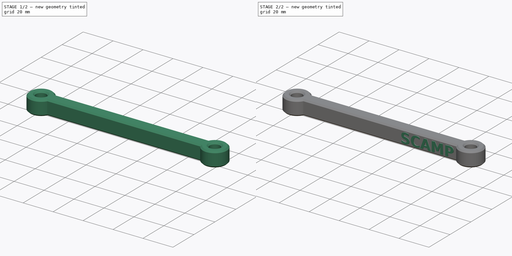
[diagram: build sequence overview — one tinted view per stage of 2, left to right]
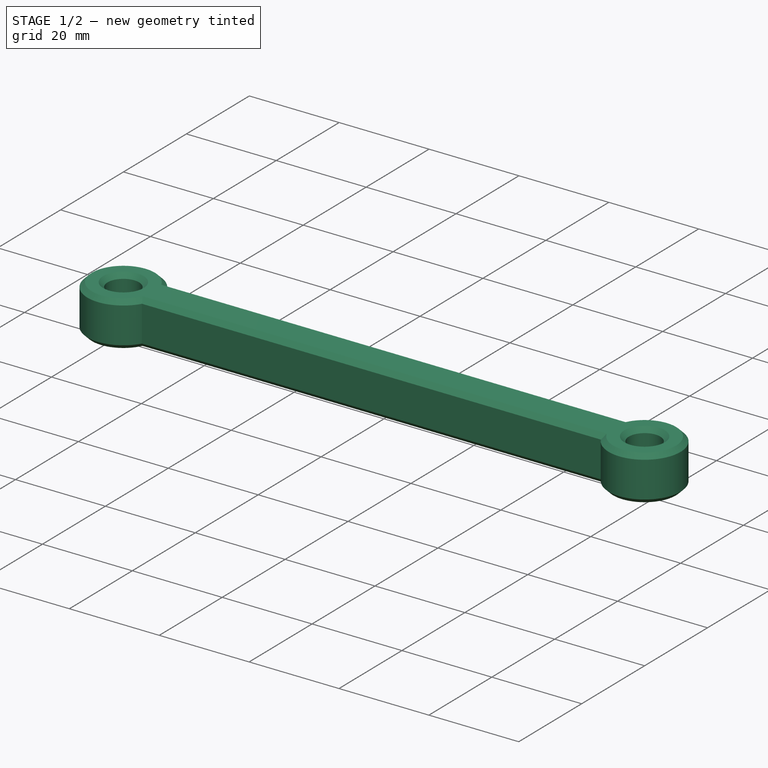
[diagram: stage 1 of 2 — iso view after this stage's code; geometry added in this stage tinted green]
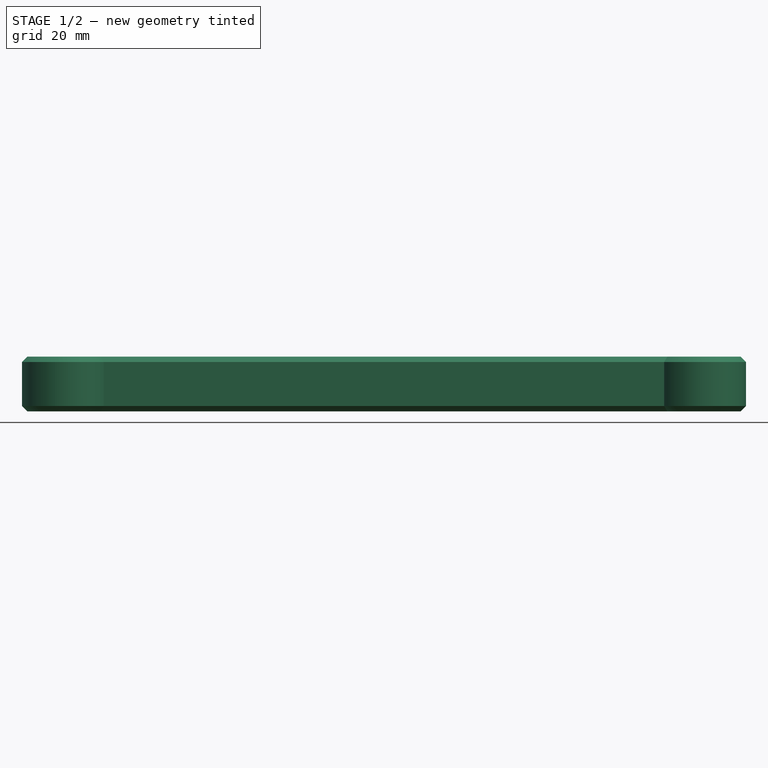
[diagram: stage 1 of 2 — front view after this stage's code; geometry added in this stage tinted green]
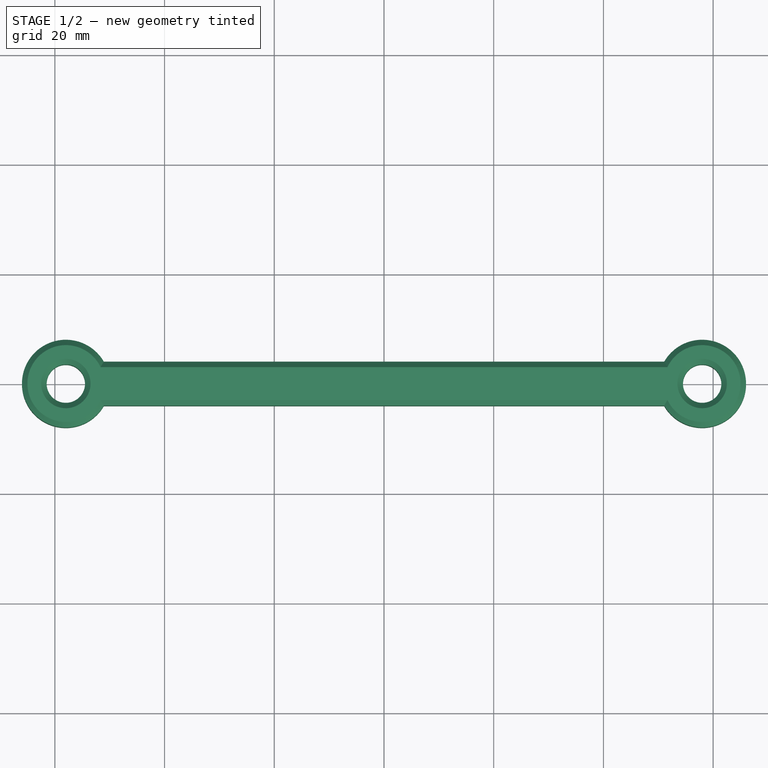
[diagram: stage 1 of 2 — top view after this stage's code; geometry added in this stage tinted green]
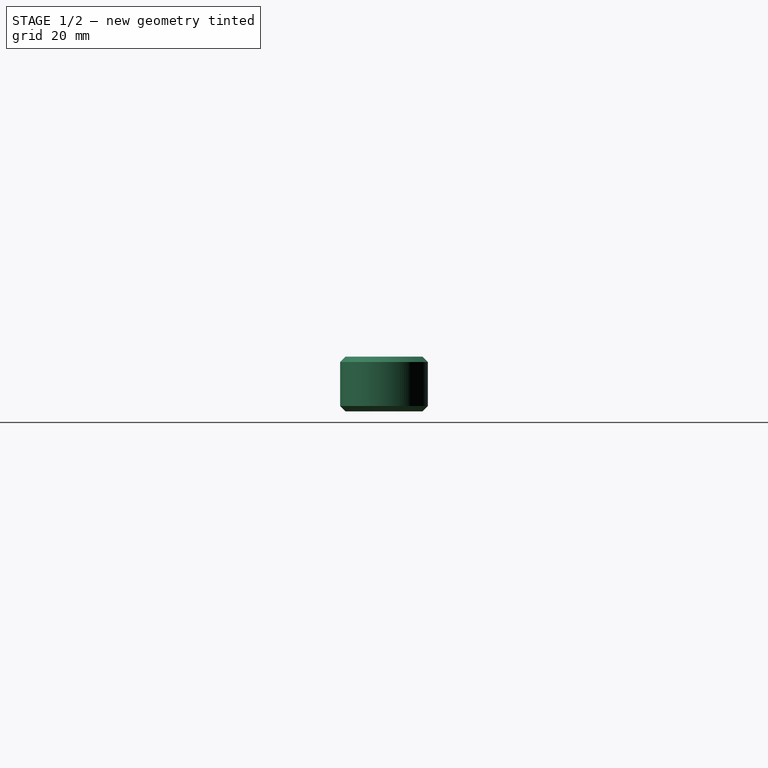
[diagram: stage 1 of 2 — right view after this stage's code; geometry added in this stage tinted green]
FCSTD DOCUMENT  (FreeCAD 0.19R23141 (Git))
Label: horizontal-brace
License: All rights reserved
LicenseURL: http://en.wikipedia.org/wiki/All_rights_reserved
objects: Sketcher::SketchObject×2, PartDesign::Pad×2, PartDesign::Chamfer×1, PartDesign::Body×1
note: 9 computed .brp shape members not serialized (recipe doc carries the construction recipe); baked Part::Feature solids carry a one-line shape summary decoded from their .brp

FEATURE [Sketcher::SketchObject] Sketch
  MapMode = 5
  Support = -> [XY_Plane]
  sketch-geometry (6):
    g0: Circle CenterX=-58 CenterY=-5e-16 CenterZ=0 NormalX=0 NormalY=0 NormalZ=1 AngleXU=0 Radius=3.5
    g1: Circle CenterX=58 CenterY=-5e-16 CenterZ=0 NormalX=0 NormalY=0 NormalZ=1 AngleXU=0 Radius=3.5
    g2: ArcOfCircle CenterX=-58 CenterY=-5e-16 CenterZ=0 NormalX=0 NormalY=0 NormalZ=1 AngleXU=0 Radius=8 StartAngle=0.523599 EndAngle=5.75959
    g3: ArcOfCircle CenterX=58 CenterY=-5e-16 CenterZ=0 NormalX=0 NormalY=0 NormalZ=1 AngleXU=0 Radius=8 StartAngle=3.66519 EndAngle=8.90118
    g4: LineSegment StartX=-51.0718 StartY=4 StartZ=0 EndX=51.0718 EndY=4 EndZ=0
    g5: LineSegment StartX=51.0718 StartY=-4 StartZ=0 EndX=-51.0718 EndY=-4 EndZ=0
  constraints (16):
    c: Equal(g1,g0)
    c: Radius(g0) = 3.5
    c: DistanceX(g0,g1) = 116
    c: Coincident(g2,g0)
    c: Coincident(g3,g1)
    c: Equal(g2,g3)
    c: Radius(g2) = 8
    c: Symmetric(g0,g1,g-2)
    c: Coincident(g4,g2)
    c: Coincident(g4,g3)
    c: Horizontal(g4)
    c: Coincident(g5,g3)
    c: Coincident(g5,g2)
    c: Horizontal(g5)
    c: Symmetric(g2,g2,g-1)
    c: DistanceY(g3,g3) = 8
FEATURE [PartDesign::Pad] Pad
  Direction = (1,1,1)
  Length = 10
  Length2 = 100
  Profile = -> Sketch
  Refine = true
  Type = 0
FEATURE [PartDesign::Chamfer] Chamfer
  Angle = 45
  Base = -> Pad [Edge12,Edge10,Edge4,Edge11,Edge3,Edge9,Edge18,Edge15,Edge7,Edge6,Edge17,Edge14]
  BaseFeature = -> Pad
  ChamferType = 0
  FlipDirection = false
  Refine = true
  Size = 1
  Size2 = 1
  SupportTransform = false
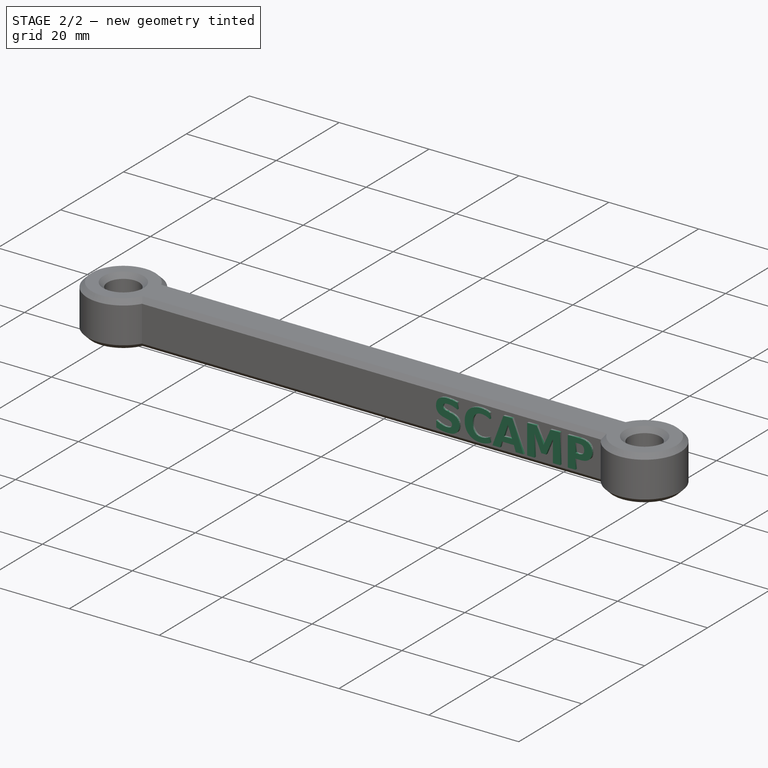
[diagram: stage 2 of 2 — iso view after this stage's code; geometry added in this stage tinted green]
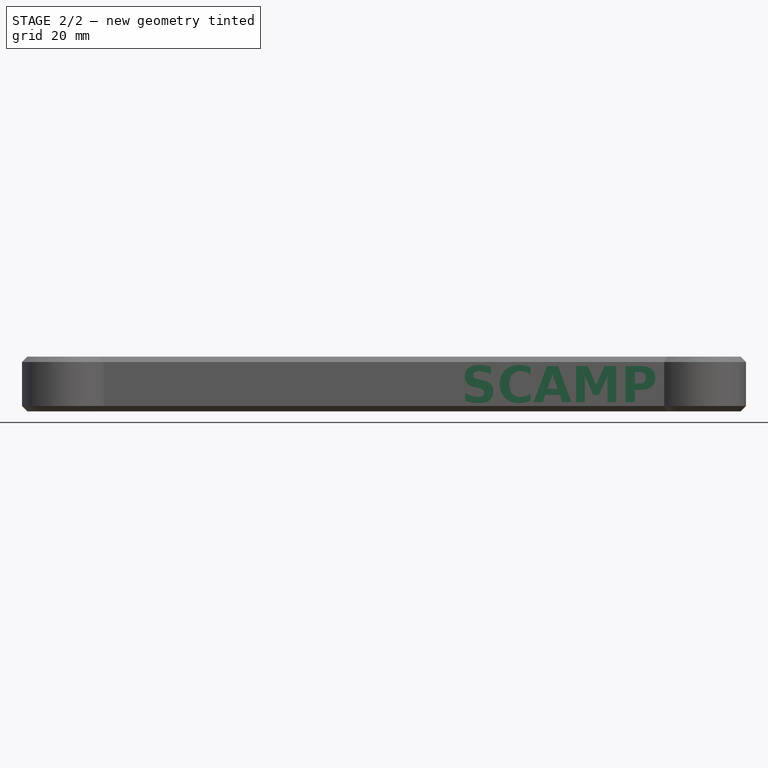
[diagram: stage 2 of 2 — front view after this stage's code; geometry added in this stage tinted green]
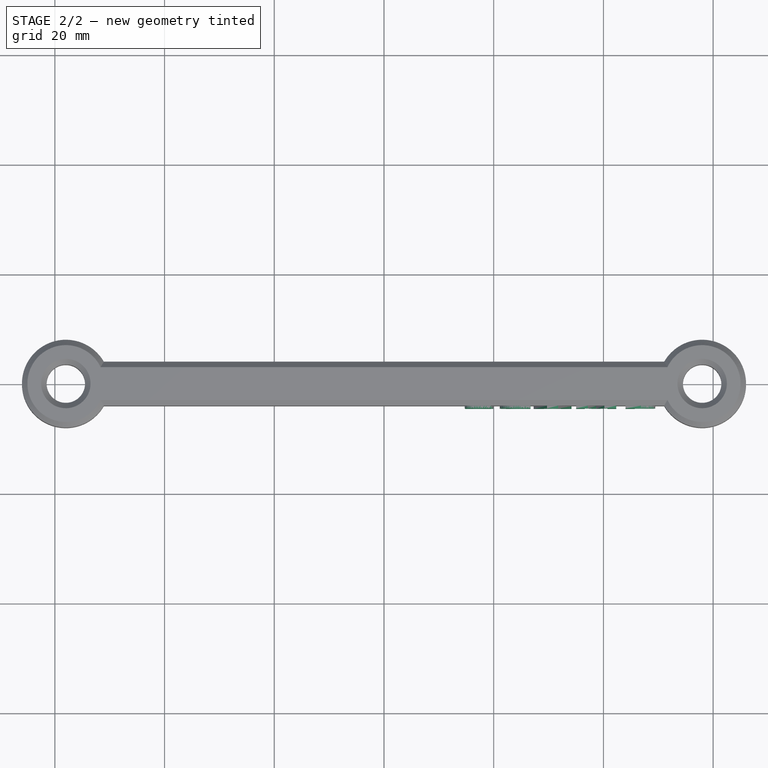
[diagram: stage 2 of 2 — top view after this stage's code; geometry added in this stage tinted green]
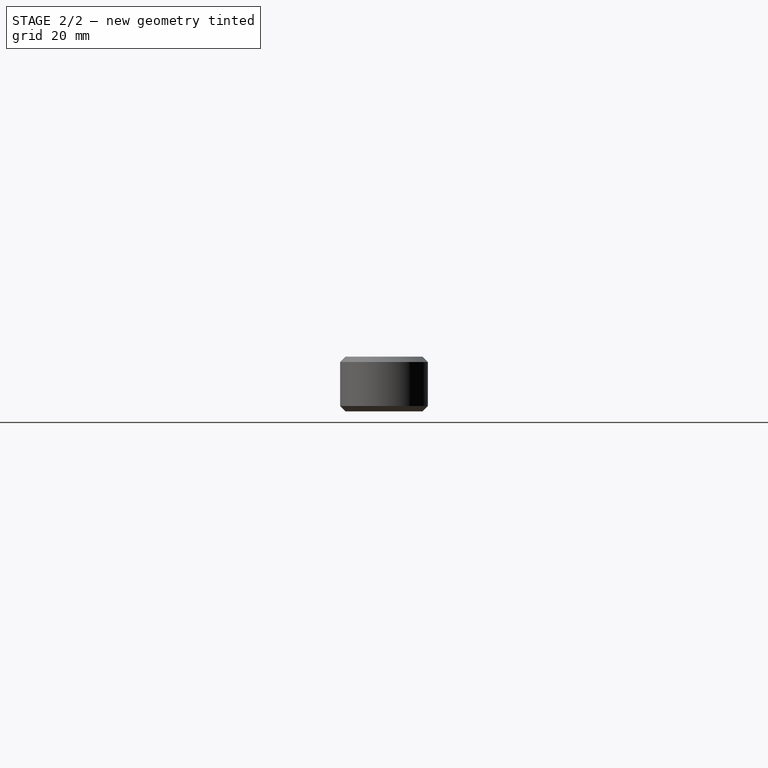
[diagram: stage 2 of 2 — right view after this stage's code; geometry added in this stage tinted green]
FEATURE [Sketcher::SketchObject] Sketch001
  MapMode = 5
  Placement = pos=(0,-4,0) rot=(1,0,0;1.5708rad)
  Support = -> [Chamfer]
  sketch-geometry (86):
    g0: LineSegment StartX=19.4856 StartY=8.1656 StartZ=0 EndX=19.4856 EndY=6.77383 EndZ=0
    g1: BSplineCurve PolesCount=3 KnotsCount=2 Degree=2 IsPeriodic=0
    g2: BSplineCurve PolesCount=3 KnotsCount=2 Degree=2 IsPeriodic=0
    g3: BSplineCurve PolesCount=3 KnotsCount=2 Degree=2 IsPeriodic=0
    g4: BSplineCurve PolesCount=3 KnotsCount=2 Degree=2 IsPeriodic=0
    g5: BSplineCurve PolesCount=3 KnotsCount=2 Degree=2 IsPeriodic=0
    g6: BSplineCurve PolesCount=3 KnotsCount=2 Degree=2 IsPeriodic=0
    g7: LineSegment StartX=17.2834 StartY=4.25159 StartZ=0 EndX=16.6257 EndY=4.40428 EndZ=0
    g8: BSplineCurve PolesCount=3 KnotsCount=2 Degree=2 IsPeriodic=0
    g9: BSplineCurve PolesCount=3 KnotsCount=2 Degree=2 IsPeriodic=0
    g10: BSplineCurve PolesCount=3 KnotsCount=2 Degree=2 IsPeriodic=0
    g11: BSplineCurve PolesCount=3 KnotsCount=2 Degree=2 IsPeriodic=0
    g12: BSplineCurve PolesCount=3 KnotsCount=2 Degree=2 IsPeriodic=0
    g13: BSplineCurve PolesCount=3 KnotsCount=2 Degree=2 IsPeriodic=0
    g14: LineSegment StartX=14.7847 StartY=1.94371 StartZ=0 EndX=14.7847 EndY=3.39128 EndZ=0
    g15: BSplineCurve PolesCount=3 KnotsCount=2 Degree=2 IsPeriodic=0
    g16: BSplineCurve PolesCount=3 KnotsCount=2 Degree=2 IsPeriodic=0
    g17: BSplineCurve PolesCount=3 KnotsCount=2 Degree=2 IsPeriodic=0
    g18: BSplineCurve PolesCount=3 KnotsCount=2 Degree=2 IsPeriodic=0
    g19: BSplineCurve PolesCount=3 KnotsCount=2 Degree=2 IsPeriodic=0
    g20: BSplineCurve PolesCount=3 KnotsCount=2 Degree=2 IsPeriodic=0
    g21: LineSegment StartX=17.1719 StartY=5.86065 StartZ=0 EndX=17.8942 EndY=5.70797 EndZ=0
    g22: BSplineCurve PolesCount=3 KnotsCount=2 Degree=2 IsPeriodic=0
    g23: BSplineCurve PolesCount=3 KnotsCount=2 Degree=2 IsPeriodic=0
    g24: BSplineCurve PolesCount=3 KnotsCount=2 Degree=2 IsPeriodic=0
    g25: BSplineCurve PolesCount=3 KnotsCount=2 Degree=2 IsPeriodic=0
    g26: BSplineCurve PolesCount=3 KnotsCount=2 Degree=2 IsPeriodic=0
    g27: BSplineCurve PolesCount=3 KnotsCount=2 Degree=2 IsPeriodic=0
    g28: BSplineCurve PolesCount=3 KnotsCount=2 Degree=2 IsPeriodic=0
    g29: LineSegment StartX=26.7 StartY=3.20336 StartZ=0 EndX=26.7 EndY=1.96133 EndZ=0
    g30: BSplineCurve PolesCount=3 KnotsCount=2 Degree=2 IsPeriodic=0
    g31: BSplineCurve PolesCount=3 KnotsCount=2 Degree=2 IsPeriodic=0
    g32: BSplineCurve PolesCount=3 KnotsCount=2 Degree=2 IsPeriodic=0
    g33: BSplineCurve PolesCount=3 KnotsCount=2 Degree=2 IsPeriodic=0
    g34: BSplineCurve PolesCount=3 KnotsCount=2 Degree=2 IsPeriodic=0
    g35: BSplineCurve PolesCount=3 KnotsCount=2 Degree=2 IsPeriodic=0
    g36: BSplineCurve PolesCount=3 KnotsCount=2 Degree=2 IsPeriodic=0
    g37: BSplineCurve PolesCount=3 KnotsCount=2 Degree=2 IsPeriodic=0
    g38: LineSegment StartX=26.7 StartY=8.01586 StartZ=0 EndX=26.7 EndY=6.77383 EndZ=0
    g39: BSplineCurve PolesCount=3 KnotsCount=2 Degree=2 IsPeriodic=0
    g40: BSplineCurve PolesCount=3 KnotsCount=2 Degree=2 IsPeriodic=0
    g41: BSplineCurve PolesCount=3 KnotsCount=2 Degree=2 IsPeriodic=0
    g42: BSplineCurve PolesCount=3 KnotsCount=2 Degree=2 IsPeriodic=0
    g43: BSplineCurve PolesCount=3 KnotsCount=2 Degree=2 IsPeriodic=0
    g44: BSplineCurve PolesCount=3 KnotsCount=2 Degree=2 IsPeriodic=0
    g45: BSplineCurve PolesCount=3 KnotsCount=2 Degree=2 IsPeriodic=0
    g46: LineSegment StartX=32.0527 StartY=3.01544 StartZ=0 EndX=29.4013 EndY=3.01544 EndZ=0
    g47: LineSegment StartX=32.4667 StartY=1.7 StartZ=0 EndX=32.0527 EndY=3.01544 EndZ=0
    g48: LineSegment StartX=34.1727 StartY=1.7 StartZ=0 EndX=32.4667 EndY=1.7 EndZ=0
    g49: LineSegment StartX=31.7356 StartY=8.27718 StartZ=0 EndX=34.1727 EndY=1.7 EndZ=0
    g50: LineSegment StartX=29.7155 StartY=8.27718 StartZ=0 EndX=31.7356 EndY=8.27718 EndZ=0
    g51: LineSegment StartX=27.2784 StartY=1.7 StartZ=0 EndX=29.7155 EndY=8.27718 EndZ=0
    g52: LineSegment StartX=28.9844 StartY=1.7 StartZ=0 EndX=27.2784 EndY=1.7 EndZ=0
    g53: LineSegment StartX=29.4013 StartY=3.01544 StartZ=0 EndX=28.9844 EndY=1.7 EndZ=0
    g54: LineSegment StartX=29.8241 StartY=4.14295 StartZ=0 EndX=31.627 EndY=4.14295 EndZ=0
    g55: LineSegment StartX=30.7285 StartY=6.74446 StartZ=0 EndX=29.8241 EndY=4.14295 EndZ=0
    g56: LineSegment StartX=31.627 StartY=4.14295 StartZ=0 EndX=30.7285 EndY=6.74446 EndZ=0
    g57: LineSegment StartX=35.0154 StartY=8.27718 StartZ=0 EndX=37.1735 EndY=8.27718 EndZ=0
    g58: LineSegment StartX=35.0154 StartY=1.7 StartZ=0 EndX=35.0154 EndY=8.27718 EndZ=0
    g59: LineSegment StartX=36.6245 StartY=1.7 StartZ=0 EndX=35.0154 EndY=1.7 EndZ=0
    g60: LineSegment StartX=36.6245 StartY=6.52718 StartZ=0 EndX=36.6245 EndY=1.7 EndZ=0
    g61: LineSegment StartX=38.1396 StartY=3.01544 StartZ=0 EndX=36.6245 EndY=6.52718 EndZ=0
    g62: LineSegment StartX=39.2142 StartY=3.01544 StartZ=0 EndX=38.1396 EndY=3.01544 EndZ=0
    g63: LineSegment StartX=40.7293 StartY=6.52718 StartZ=0 EndX=39.2142 EndY=3.01544 EndZ=0
    g64: LineSegment StartX=40.7293 StartY=1.7 StartZ=0 EndX=40.7293 EndY=6.52718 EndZ=0
    g65: LineSegment StartX=42.3325 StartY=1.7 StartZ=0 EndX=40.7293 EndY=1.7 EndZ=0
    g66: LineSegment StartX=42.3325 StartY=8.27718 StartZ=0 EndX=42.3325 EndY=1.7 EndZ=0
    g67: LineSegment StartX=40.1773 StartY=8.27718 StartZ=0 EndX=42.3325 EndY=8.27718 EndZ=0
    g68: LineSegment StartX=38.671 StartY=4.79186 StartZ=0 EndX=40.1773 EndY=8.27718 EndZ=0
    g69: LineSegment StartX=37.1735 StartY=8.27718 StartZ=0 EndX=38.671 EndY=4.79186 EndZ=0
    g70: LineSegment StartX=44.0355 StartY=8.27718 StartZ=0 EndX=46.8514 EndY=8.27718 EndZ=0
    g71: LineSegment StartX=44.0355 StartY=1.7 StartZ=0 EndX=44.0355 EndY=8.27718 EndZ=0
    g72: LineSegment StartX=45.7327 StartY=1.7 StartZ=0 EndX=44.0355 EndY=1.7 EndZ=0
    g73: LineSegment StartX=45.7327 StartY=3.95503 StartZ=0 EndX=45.7327 EndY=1.7 EndZ=0
    g74: LineSegment StartX=46.8514 StartY=3.95503 StartZ=0 EndX=45.7327 EndY=3.95503 EndZ=0
    g75: BSplineCurve PolesCount=3 KnotsCount=2 Degree=2 IsPeriodic=0
    g76: BSplineCurve PolesCount=3 KnotsCount=2 Degree=2 IsPeriodic=0
    g77: BSplineCurve PolesCount=3 KnotsCount=2 Degree=2 IsPeriodic=0
    g78: BSplineCurve PolesCount=3 KnotsCount=2 Degree=2 IsPeriodic=0
    g79: LineSegment StartX=45.7327 StartY=7.14966 StartZ=0 EndX=45.7327 EndY=5.08255 EndZ=0
    g80: LineSegment StartX=46.6693 StartY=7.14966 StartZ=0 EndX=45.7327 EndY=7.14966 EndZ=0
    g81: BSplineCurve PolesCount=3 KnotsCount=2 Degree=2 IsPeriodic=0
    g82: BSplineCurve PolesCount=3 KnotsCount=2 Degree=2 IsPeriodic=0
    g83: BSplineCurve PolesCount=3 KnotsCount=2 Degree=2 IsPeriodic=0
    g84: BSplineCurve PolesCount=3 KnotsCount=2 Degree=2 IsPeriodic=0
    g85: LineSegment StartX=45.7327 StartY=5.08255 StartZ=0 EndX=46.6693 EndY=5.08255 EndZ=0
  constraints (112):
    c: Vertical(g0)
    c: Coincident(g0,g1)
    c: Coincident(g1,g2)
    c: Coincident(g2,g3)
    c: Coincident(g3,g4)
    c: Coincident(g4,g5)
    c: Coincident(g5,g6)
    c: Coincident(g6,g7)
    c: Coincident(g7,g8)
    c: Coincident(g8,g9)
    c: Coincident(g9,g10)
    c: Coincident(g10,g11)
    c: Coincident(g11,g12)
    c: Coincident(g12,g13)
    c: Coincident(g13,g14)
    c: Vertical(g14)
    c: Coincident(g14,g15)
    c: Coincident(g15,g16)
    c: Coincident(g16,g17)
    c: Coincident(g17,g18)
    c: Coincident(g18,g19)
    c: Coincident(g19,g20)
    c: Coincident(g20,g21)
    c: Coincident(g21,g22)
    c: Coincident(g22,g23)
    c: Coincident(g23,g24)
    c: Coincident(g24,g25)
    c: Coincident(g25,g26)
    c: Coincident(g26,g27)
    c: Coincident(g27,g0)
    c: Coincident(g28,g29)
    c: Vertical(g29)
    c: Coincident(g29,g30)
    c: Coincident(g30,g31)
    c: Coincident(g31,g32)
    c: Coincident(g32,g33)
    c: Coincident(g33,g34)
    c: Coincident(g34,g35)
    c: Coincident(g35,g36)
    c: Coincident(g36,g37)
    c: Coincident(g37,g38)
    c: Vertical(g38)
    c: Coincident(g38,g39)
    c: Coincident(g39,g40)
    c: Coincident(g40,g41)
    c: Coincident(g41,g42)
    c: Coincident(g42,g43)
    c: Coincident(g43,g44)
    c: Coincident(g44,g45)
    c: Coincident(g45,g28)
    c: Horizontal(g46)
    c: Coincident(g46,g47)
    c: Coincident(g47,g48)
    c: Horizontal(g48)
    c: Coincident(g48,g49)
    c: Coincident(g49,g50)
    c: Horizontal(g50)
    c: Coincident(g50,g51)
    c: Coincident(g51,g52)
    c: Horizontal(g52)
    c: Coincident(g52,g53)
    c: Coincident(g53,g46)
    c: Horizontal(g54)
    c: Coincident(g54,g55)
    c: Coincident(g55,g56)
    c: Coincident(g56,g54)
    c: Horizontal(g57)
    c: Coincident(g57,g58)
    c: Vertical(g58)
    c: Coincident(g58,g59)
    c: Horizontal(g59)
    c: Coincident(g59,g60)
    c: Vertical(g60)
    c: Coincident(g60,g61)
    c: Coincident(g61,g62)
    c: Horizontal(g62)
    c: Coincident(g62,g63)
    c: Coincident(g63,g64)
    c: Vertical(g64)
    c: Coincident(g64,g65)
    c: Horizontal(g65)
    c: Coincident(g65,g66)
    c: Vertical(g66)
    c: Coincident(g66,g67)
    c: Horizontal(g67)
    c: Coincident(g67,g68)
    c: Coincident(g68,g69)
    c: Coincident(g69,g57)
    c: Horizontal(g70)
    c: Coincident(g70,g71)
    c: Vertical(g71)
    c: Coincident(g71,g72)
    c: Horizontal(g72)
    c: Coincident(g72,g73)
    c: Vertical(g73)
    c: Coincident(g73,g74)
    c: Horizontal(g74)
    c: Coincident(g74,g75)
    c: Coincident(g75,g76)
    c: Coincident(g76,g77)
    c: Coincident(g77,g78)
    c: Coincident(g78,g70)
    c: Vertical(g79)
    c: Coincident(g79,g80)
    c: Horizontal(g80)
    c: Coincident(g80,g81)
    c: Coincident(g81,g82)
    c: Coincident(g82,g83)
    c: Coincident(g83,g84)
    c: Coincident(g84,g85)
    c: Horizontal(g85)
    c: Coincident(g85,g79)
FEATURE [PartDesign::Pad] Pad001
  BaseFeature = -> Chamfer
  Direction = (1,1,1)
  Length = 0.5
  Length2 = 100
  Profile = -> Sketch001
  Refine = true
  Type = 0
FEATURE [PartDesign::Body] Body
  Group = -> [Sketch,Pad,Chamfer,Sketch001,Pad001]
  Origin = -> Origin
  Tip = -> Pad001
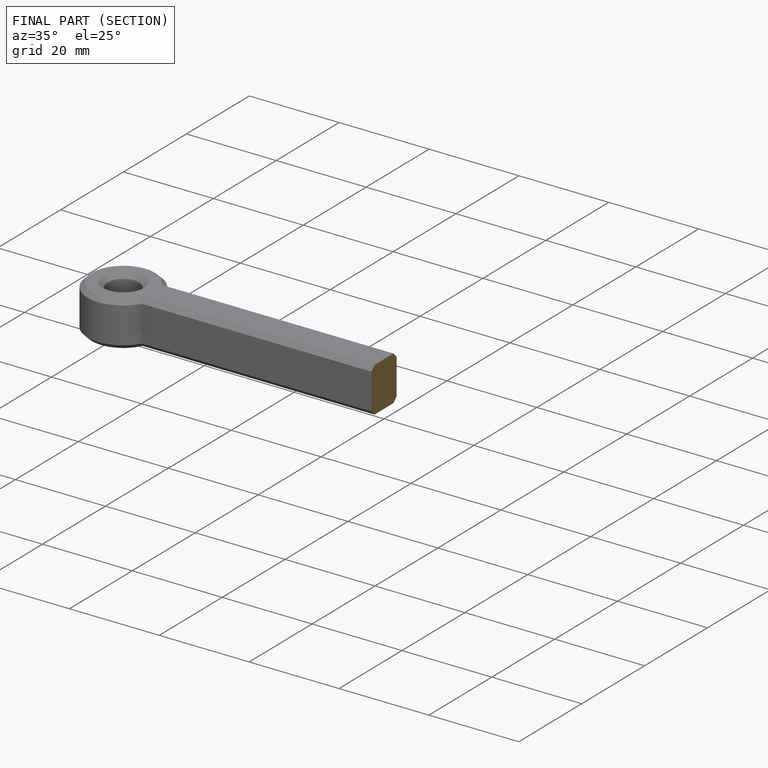
[diagram: finished part — half-section view (interior)]
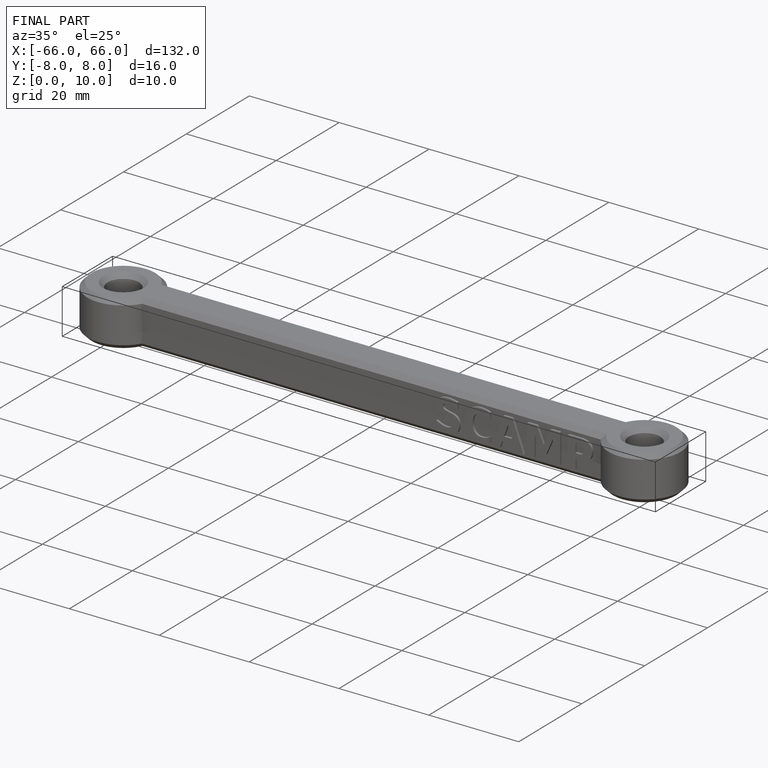
[diagram: finished part — iso view with bounding-box wireframe]
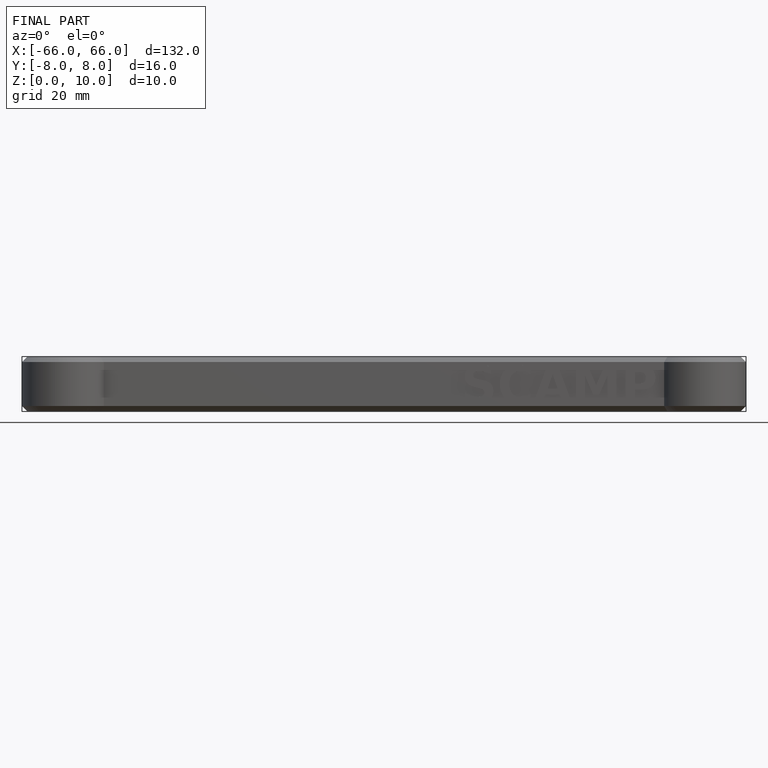
[diagram: finished part — front view with bounding-box wireframe]
